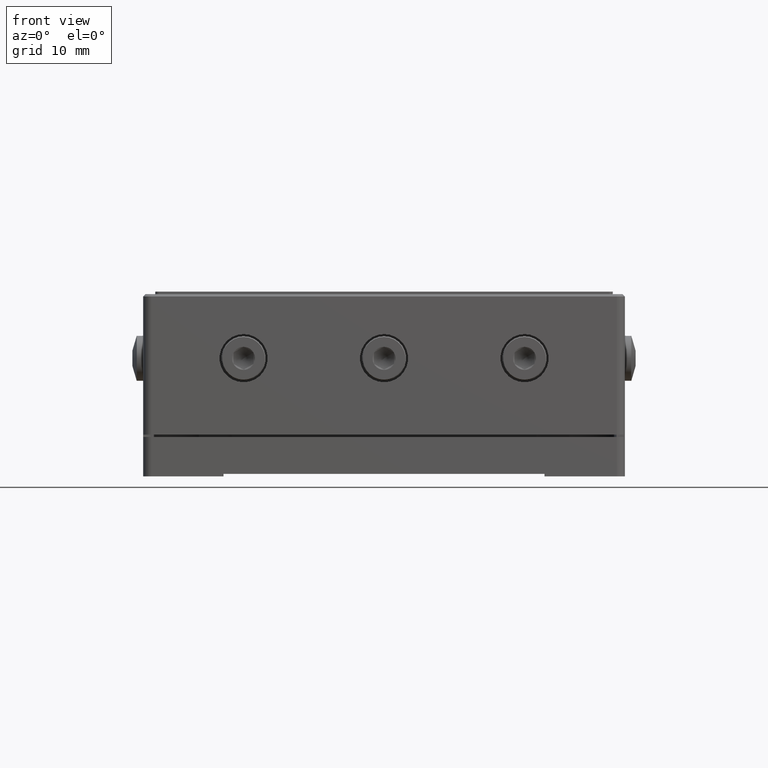
[diagram: clean part render]
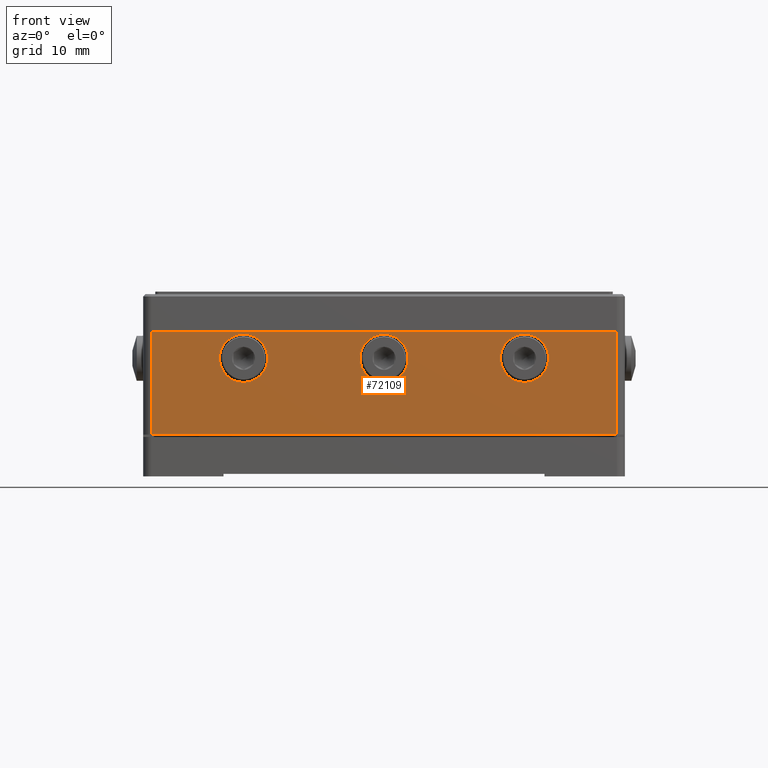
[diagram: same view with one face highlighted and labeled with its STEP entity id]
A machine part, front view. The second image highlights one B-rep face of the part: STEP entity #72109.
In plain terms, the highlighted planar face has unit normal (0, -1, 0).
Its self-contained STEP definition (entity closure, byte-faithful):
#666 = AXIS2_PLACEMENT_3D ( 'NONE', #62547, #62065, #77250 ) ;
#1160 = CARTESIAN_POINT ( 'NONE',  ( 28.99999999999999645, -30.00000000000000000, -6.200000000000001066 ) ) ;
#2594 = DIRECTION ( 'NONE',  ( -0.000000000000000000, 0.000000000000000000, 1.000000000000000000 ) ) ;
#4031 = CIRCLE ( 'NONE', #54063, 3.000000000000000000 ) ;
#4480 = FACE_BOUND ( 'NONE', #53650, .T. ) ;
#7347 = AXIS2_PLACEMENT_3D ( 'NONE', #80928, #28438, #42679 ) ;
#11434 = CARTESIAN_POINT ( 'NONE',  ( -29.00000000000000000, -30.00000000000000000, 6.599999999999998757 ) ) ;
#11499 = EDGE_CURVE ( 'NONE', #41581, #89477, #80452, .T. ) ;
#12026 = DIRECTION ( 'NONE',  ( -0.000000000000000000, 1.000000000000000000, -0.000000000000000000 ) ) ;
#12350 = ORIENTED_EDGE ( 'NONE', *, *, #58000, .T. ) ;
#15491 = ORIENTED_EDGE ( 'NONE', *, *, #53312, .T. ) ;
#16452 = ORIENTED_EDGE ( 'NONE', *, *, #68293, .T. ) ;
#17268 = EDGE_CURVE ( 'NONE', #50225, #41581, #85859, .T. ) ;
#17536 = CARTESIAN_POINT ( 'NONE',  ( 28.99999999999999645, -30.00000000000000000, 6.599999999999998757 ) ) ;
#18159 = EDGE_LOOP ( 'NONE', ( #16452 ) ) ;
#19924 = ORIENTED_EDGE ( 'NONE', *, *, #17268, .T. ) ;
#21347 = VECTOR ( 'NONE', #67653, 1000.000000000000000 ) ;
#21625 = VERTEX_POINT ( 'NONE', #17536 ) ;
#21651 = CARTESIAN_POINT ( 'NONE',  ( 17.50000000000000000, -30.00000000000000000, 0.2999999999999999334 ) ) ;
#23667 = CARTESIAN_POINT ( 'NONE',  ( 28.99999999999999645, -30.00000000000000000, 6.599999999999999645 ) ) ;
#28438 = DIRECTION ( 'NONE',  ( 0.000000000000000000, -1.000000000000000000, 0.000000000000000000 ) ) ;
#31973 = CARTESIAN_POINT ( 'NONE',  ( -17.50000000000000000, -30.00000000000000000, 0.2999999999999999334 ) ) ;
#34830 = FACE_BOUND ( 'NONE', #18159, .T. ) ;
#36314 = VERTEX_POINT ( 'NONE', #21651 ) ;
#40234 = ORIENTED_EDGE ( 'NONE', *, *, #11499, .T. ) ;
#41581 = VERTEX_POINT ( 'NONE', #87872 ) ;
#42679 = DIRECTION ( 'NONE',  ( 0.000000000000000000, -0.000000000000000000, -1.000000000000000000 ) ) ;
#42742 = VECTOR ( 'NONE', #2594, 1000.000000000000000 ) ;
#43208 = CARTESIAN_POINT ( 'NONE',  ( 0.000000000000000000, -30.00000000000000000, 0.2999999999999999334 ) ) ;
#45436 = DIRECTION ( 'NONE',  ( 0.000000000000000000, 0.000000000000000000, -1.000000000000000000 ) ) ;
#50225 = VERTEX_POINT ( 'NONE', #11434 ) ;
#50846 = VECTOR ( 'NONE', #63791, 1000.000000000000000 ) ;
#53312 = EDGE_CURVE ( 'NONE', #21625, #50225, #76928, .T. ) ;
#53650 = EDGE_LOOP ( 'NONE', ( #12350 ) ) ;
#54063 = AXIS2_PLACEMENT_3D ( 'NONE', #60161, #90079, #45436 ) ;
#54410 = CARTESIAN_POINT ( 'NONE',  ( -30.00000000000000000, -30.00000000000000000, 6.599999999999999645 ) ) ;
#55578 = AXIS2_PLACEMENT_3D ( 'NONE', #64448, #12026, #57575 ) ;
#57575 = DIRECTION ( 'NONE',  ( 0.000000000000000000, 0.000000000000000000, -1.000000000000000000 ) ) ;
#58000 = EDGE_CURVE ( 'NONE', #75612, #75612, #4031, .T. ) ;
#60161 = CARTESIAN_POINT ( 'NONE',  ( -17.50000000000000000, -30.00000000000000000, 3.299999999999999822 ) ) ;
#61407 = LINE ( 'NONE', #23667, #42742 ) ;
#62065 = DIRECTION ( 'NONE',  ( -0.000000000000000000, 1.000000000000000000, -0.000000000000000000 ) ) ;
#62547 = CARTESIAN_POINT ( 'NONE',  ( 0.000000000000000000, -30.00000000000000000, 3.299999999999999822 ) ) ;
#63562 = CIRCLE ( 'NONE', #666, 3.000000000000000000 ) ;
#63791 = DIRECTION ( 'NONE',  ( 0.000000000000000000, -0.000000000000000000, -1.000000000000000000 ) ) ;
#64448 = CARTESIAN_POINT ( 'NONE',  ( 17.50000000000000000, -30.00000000000000000, 3.299999999999999822 ) ) ;
#65265 = DIRECTION ( 'NONE',  ( 1.000000000000000000, 0.000000000000000000, 0.000000000000000000 ) ) ;
#66219 = CARTESIAN_POINT ( 'NONE',  ( -30.00000000000000000, -30.00000000000000000, -6.200000000000001066 ) ) ;
#66554 = CIRCLE ( 'NONE', #55578, 3.000000000000000000 ) ;
#67653 = DIRECTION ( 'NONE',  ( -1.000000000000000000, -0.000000000000000000, -0.000000000000000000 ) ) ;
#68293 = EDGE_CURVE ( 'NONE', #36314, #36314, #66554, .T. ) ;
#69460 = EDGE_CURVE ( 'NONE', #73580, #73580, #63562, .T. ) ;
#70539 = EDGE_LOOP ( 'NONE', ( #73987 ) ) ;
#72109 = ADVANCED_FACE ( 'NONE', ( #4480, #34830, #95610, #78986 ), #87783, .T. ) ;
#73580 = VERTEX_POINT ( 'NONE', #43208 ) ;
#73987 = ORIENTED_EDGE ( 'NONE', *, *, #69460, .T. ) ;
#74523 = VECTOR ( 'NONE', #65265, 1000.000000000000000 ) ;
#75612 = VERTEX_POINT ( 'NONE', #31973 ) ;
#76928 = LINE ( 'NONE', #54410, #21347 ) ;
#77250 = DIRECTION ( 'NONE',  ( 0.000000000000000000, 0.000000000000000000, -1.000000000000000000 ) ) ;
#78986 = FACE_OUTER_BOUND ( 'NONE', #95795, .T. ) ;
#80452 = LINE ( 'NONE', #66219, #74523 ) ;
#80928 = CARTESIAN_POINT ( 'NONE',  ( -30.00000000000000000, -30.00000000000000000, 6.599999999999999645 ) ) ;
#84392 = CARTESIAN_POINT ( 'NONE',  ( -29.00000000000000000, -30.00000000000000000, 6.599999999999999645 ) ) ;
#85859 = LINE ( 'NONE', #84392, #50846 ) ;
#87783 = PLANE ( 'NONE',  #7347 ) ;
#87872 = CARTESIAN_POINT ( 'NONE',  ( -29.00000000000000000, -30.00000000000000000, -6.200000000000001066 ) ) ;
#89477 = VERTEX_POINT ( 'NONE', #1160 ) ;
#89907 = ORIENTED_EDGE ( 'NONE', *, *, #92248, .T. ) ;
#90079 = DIRECTION ( 'NONE',  ( -0.000000000000000000, 1.000000000000000000, -0.000000000000000000 ) ) ;
#92248 = EDGE_CURVE ( 'NONE', #89477, #21625, #61407, .T. ) ;
#95610 = FACE_BOUND ( 'NONE', #70539, .T. ) ;
#95795 = EDGE_LOOP ( 'NONE', ( #15491, #19924, #40234, #89907 ) ) ;